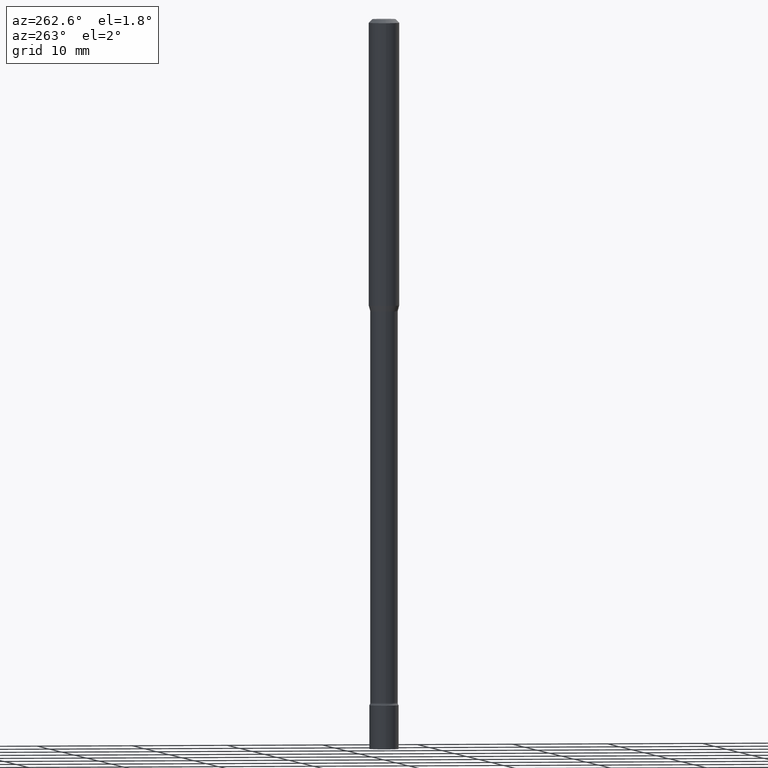
[diagram: clean part render]
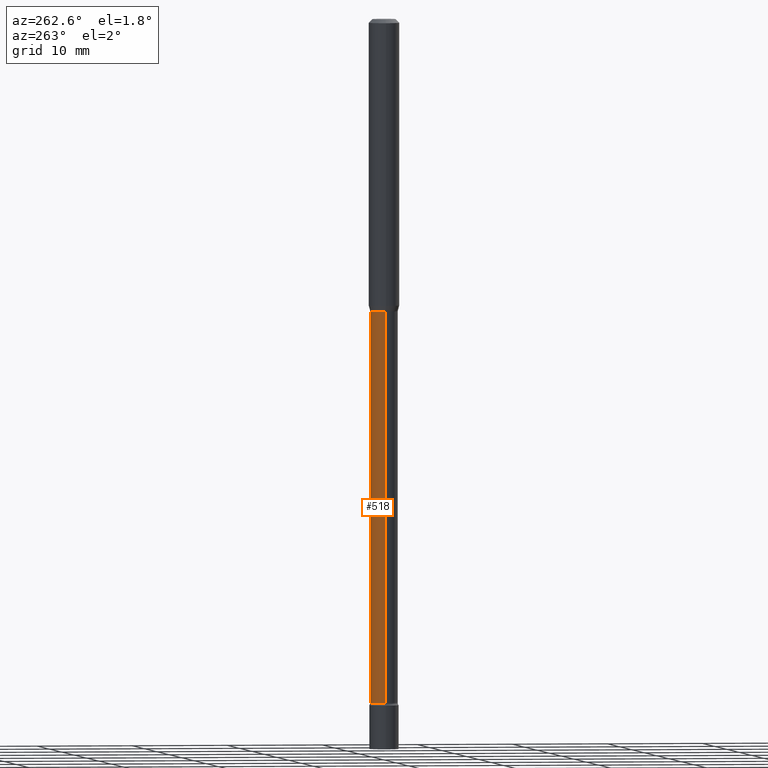
[diagram: same view with one face highlighted and labeled with its STEP entity id]
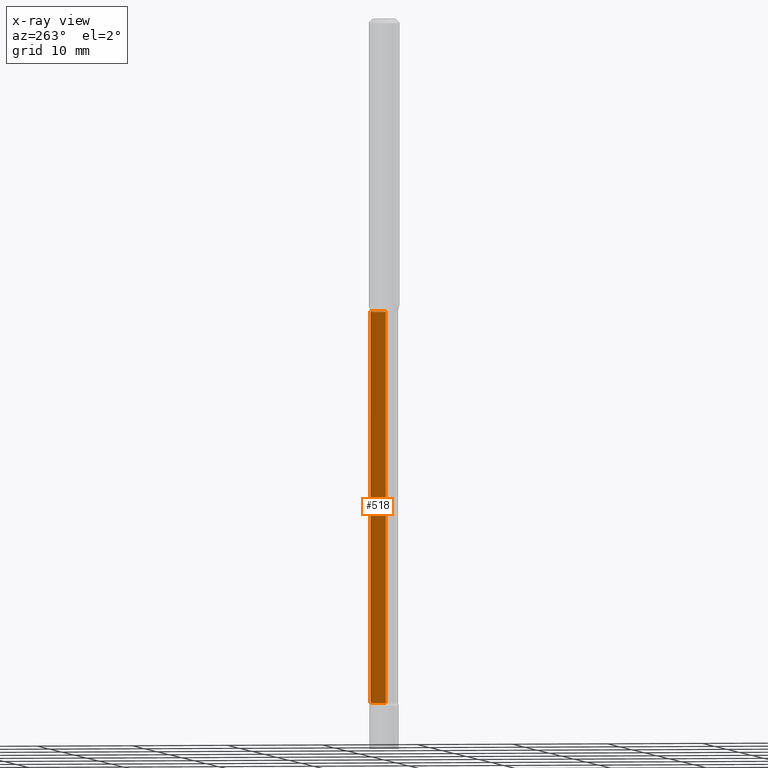
[diagram: x-ray of the same camera — body ghosted, the highlighted face saturated]
A machine part, auxiliary view. The second image highlights one B-rep face of the part: STEP entity #518.
The next image is the same camera in x-ray: the body ghosted, the highlighted face saturated — about 0% of this face is hidden behind the body in this view.
In plain terms, the highlighted cylindrical surface (edge-blend (fillet) strip) has radius 1.4326 mm, axis along (-0, 0, 1).
Its self-contained STEP definition (entity closure, byte-faithful):
#13 = EDGE_CURVE ( 'NONE', #282, #393, #455, .T. ) ;
#35 = DIRECTION ( 'NONE',  ( -2.445468806185136597E-29, 3.491481338843145583E-15, 1.000000000000000000 ) ) ;
#36 = DIRECTION ( 'NONE',  ( -2.445468806185136597E-29, 3.491481338843145583E-15, 1.000000000000000000 ) ) ;
#42 = EDGE_CURVE ( 'NONE', #393, #112, #366, .T. ) ;
#56 = DIRECTION ( 'NONE',  ( -2.445468806185136877E-29, 3.491481338843145188E-15, 1.000000000000000000 ) ) ;
#64 = CARTESIAN_POINT ( 'NONE',  ( 0.05639999999999999181, -4.590511635211357354E-15, -1.201974787463811145 ) ) ;
#70 = EDGE_LOOP ( 'NONE', ( #116, #290, #267, #316 ) ) ;
#81 = DIRECTION ( 'NONE',  ( -2.445468806185136877E-29, 3.491481338843145188E-15, 1.000000000000000000 ) ) ;
#86 = CARTESIAN_POINT ( 'NONE',  ( 6.872381534443541527E-29, -9.811939461354673700E-15, -2.810251153914437250 ) ) ;
#109 = DIRECTION ( 'NONE',  ( -2.445468806185136597E-29, 3.491481338843145583E-15, 1.000000000000000000 ) ) ;
#112 = VERTEX_POINT ( 'NONE', #283 ) ;
#116 = ORIENTED_EDGE ( 'NONE', *, *, #13, .T. ) ;
#145 = CARTESIAN_POINT ( 'NONE',  ( -0.05640000000000020691, -9.415422546233793245E-15, -2.810251153914437250 ) ) ;
#180 = CARTESIAN_POINT ( 'NONE',  ( 0.05640000000000009589, -3.938390950215061442E-16, 2.750163701548912549E-30 ) ) ;
#244 = FACE_OUTER_BOUND ( 'NONE', #70, .T. ) ;
#257 = VERTEX_POINT ( 'NONE', #64 ) ;
#258 = VECTOR ( 'NONE', #81, 39.37007874015748143 ) ;
#267 = ORIENTED_EDGE ( 'NONE', *, *, #334, .F. ) ;
#282 = VERTEX_POINT ( 'NONE', #512 ) ;
#283 = CARTESIAN_POINT ( 'NONE',  ( -0.05639999999999999181, -6.603559897803563913E-15, -1.201974787463811145 ) ) ;
#284 = CYLINDRICAL_SURFACE ( 'NONE', #513, 0.05640000000000009589 ) ;
#288 = EDGE_CURVE ( 'NONE', #282, #257, #516, .T. ) ;
#290 = ORIENTED_EDGE ( 'NONE', *, *, #42, .T. ) ;
#306 = DIRECTION ( 'NONE',  ( 1.000000000000000000, -6.982962677686261977E-15, 0.000000000000000000 ) ) ;
#316 = ORIENTED_EDGE ( 'NONE', *, *, #288, .F. ) ;
#318 = CARTESIAN_POINT ( 'NONE',  ( 0.000000000000000000, 0.000000000000000000, 0.000000000000000000 ) ) ;
#334 = EDGE_CURVE ( 'NONE', #257, #112, #387, .T. ) ;
#344 = AXIS2_PLACEMENT_3D ( 'NONE', #470, #109, #306 ) ;
#355 = VECTOR ( 'NONE', #56, 39.37007874015748143 ) ;
#362 = DIRECTION ( 'NONE',  ( 1.000000000000000000, -6.982962677686251722E-15, 0.000000000000000000 ) ) ;
#366 = LINE ( 'NONE', #372, #258 ) ;
#372 = CARTESIAN_POINT ( 'NONE',  ( -0.05640000000000009589, 4.007461029686971862E-16, -2.774279390903771769E-30 ) ) ;
#387 = CIRCLE ( 'NONE', #344, 0.05639999999999999181 ) ;
#393 = VERTEX_POINT ( 'NONE', #145 ) ;
#408 = AXIS2_PLACEMENT_3D ( 'NONE', #86, #35, #362 ) ;
#455 = CIRCLE ( 'NONE', #408, 0.05640000000000020691 ) ;
#470 = CARTESIAN_POINT ( 'NONE',  ( 2.939391848563759513E-29, -4.196672540189852739E-15, -1.201974787463811145 ) ) ;
#478 = DIRECTION ( 'NONE',  ( 1.000000000000000000, -6.982962677686267499E-15, 4.876176775795935793E-29 ) ) ;
#512 = CARTESIAN_POINT ( 'NONE',  ( 0.05640000000000020691, -1.020577855637617911E-14, -2.810251153914437250 ) ) ;
#513 = AXIS2_PLACEMENT_3D ( 'NONE', #318, #36, #478 ) ;
#516 = LINE ( 'NONE', #180, #355 ) ;
#518 = ADVANCED_FACE ( 'NONE', ( #244 ), #284, .T. ) ;